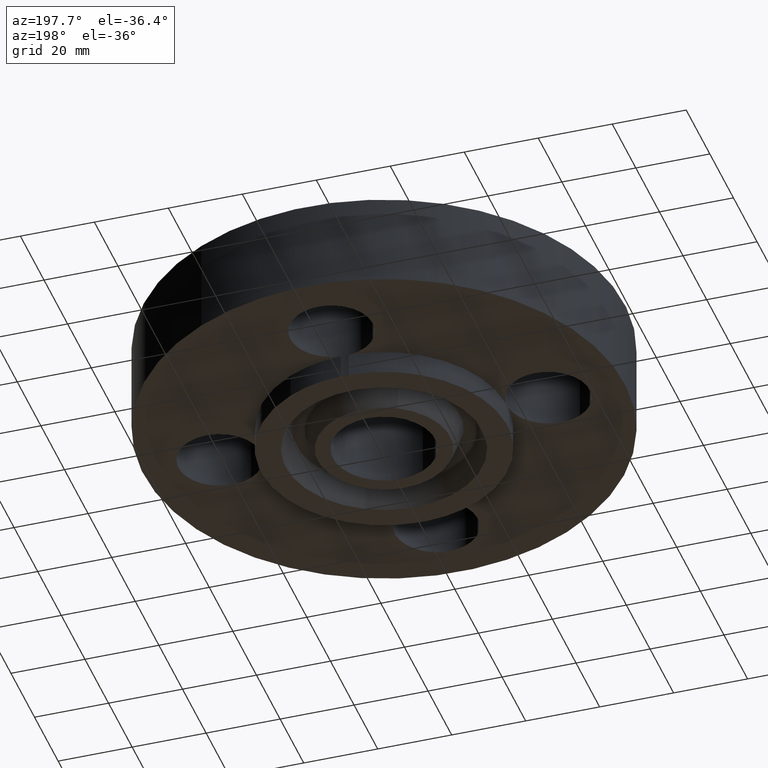
[diagram: clean part render]
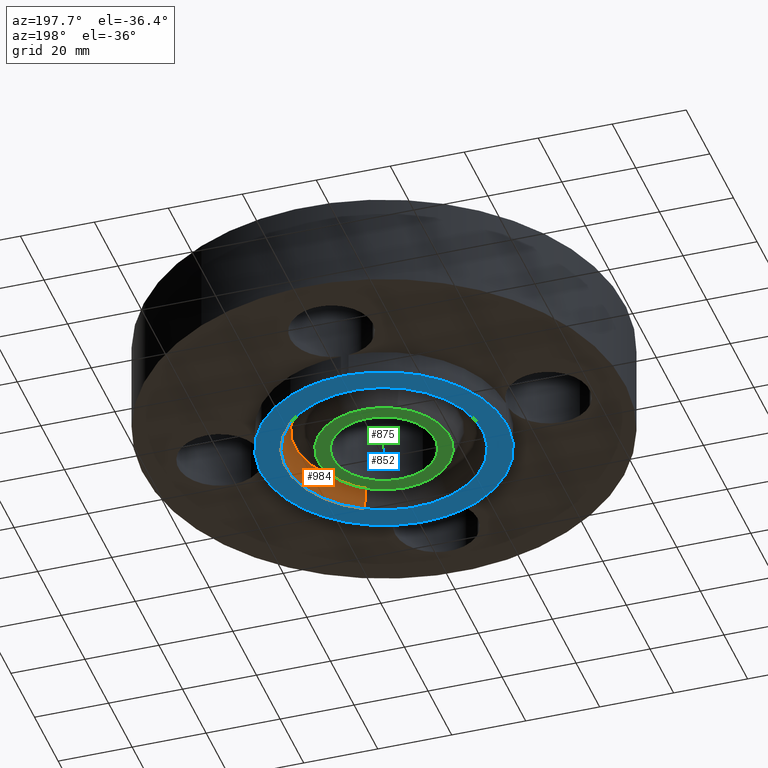
[diagram: same view with three faces highlighted in distinct colors, each labeled with its STEP entity id]
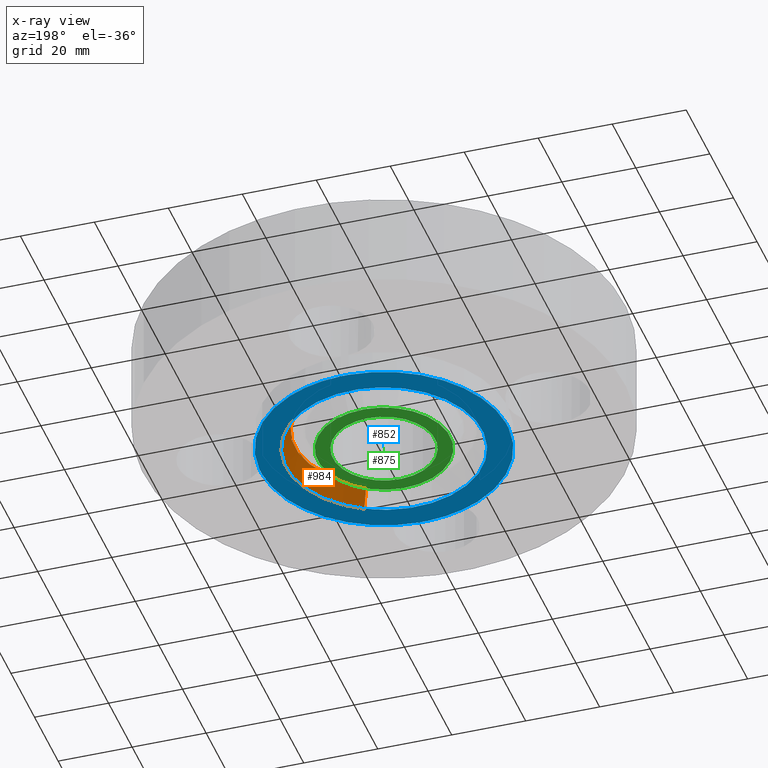
[diagram: x-ray of the same camera — body ghosted, the three highlighted faces saturated]
A machine part, auxiliary view with three faces highlighted in distinct colors.
The next image is the same camera in x-ray (body ghosted, the three faces saturated) — at least one of them is partly hidden behind the body in this view.
Their STEP definitions:

[orange] entity #984 — the highlighted conical surface has half-angle 23 deg.
#845=AXIS2_PLACEMENT_3D('Circle Axis2P3D',#843,#844,$) ;
#919=AXIS2_PLACEMENT_3D('Cone Axis2P3D',#916,#917,#918) ;
#940=AXIS2_PLACEMENT_3D('Circle Axis2P3D',#938,#939,$) ;
#838=CARTESIAN_POINT('Vertex',(0.501958538921,-0.918828942303,-0.250000000001)) ;
#840=CARTESIAN_POINT('Vertex',(-0.501958538921,0.918828942303,-0.250000000001)) ;
#843=CARTESIAN_POINT('Axis2P3D Location',(0.,6.99353086378E-017,-0.250000000001)) ;
#885=CARTESIAN_POINT('Vertex',(-0.454926171572,0.832736771348,-0.0188873350169)) ;
#887=CARTESIAN_POINT('Vertex',(0.454926171572,-0.832736771348,-0.0188873350169)) ;
#916=CARTESIAN_POINT('Axis2P3D Location',(0.,0.,-0.0188873350169)) ;
#921=CARTESIAN_POINT('Line Origine',(-0.478442355246,0.875782856826,-0.134443667509)) ;
#926=CARTESIAN_POINT('Line Origine',(0.478442355246,-0.875782856826,-0.134443667509)) ;
#938=CARTESIAN_POINT('Axis2P3D Location',(0.,0.,-0.0188873350169)) ;
#844=DIRECTION('Axis2P3D Direction',(0.,0.,-0.0393700787402)) ;
#917=DIRECTION('Axis2P3D Direction',(-0.,-0.,-0.0393700787402)) ;
#918=DIRECTION('Axis2P3D XDirection',(-0.0188750212049,0.0345504945626,0.)) ;
#922=DIRECTION('Vector Direction',(-0.00737505833565,0.0134999537303,-0.0362403485611)) ;
#927=DIRECTION('Vector Direction',(0.00737505833565,-0.0134999537303,-0.0362403485611)) ;
#939=DIRECTION('Axis2P3D Direction',(0.,0.,0.0393700787402)) ;
#923=VECTOR('Line Direction',#922,0.0393700787402) ;
#928=VECTOR('Line Direction',#927,0.0393700787402) ;
#979=ORIENTED_EDGE('',*,*,#847,.T.) ;
#980=ORIENTED_EDGE('',*,*,#930,.T.) ;
#981=ORIENTED_EDGE('',*,*,#942,.T.) ;
#982=ORIENTED_EDGE('',*,*,#925,.F.) ;
#984=ADVANCED_FACE('PartBody',(#983),#920,.F.) ;
#846=CIRCLE('generated circle',#845,1.047) ;
#941=CIRCLE('generated circle',#940,0.948898494011) ;
#920=CONICAL_SURFACE('Cone',#919,0.948898494011,0.401425727959) ;
#847=EDGE_CURVE('',#841,#839,#846,.T.) ;
#925=EDGE_CURVE('',#841,#886,#924,.F.) ;
#930=EDGE_CURVE('',#839,#888,#929,.F.) ;
#942=EDGE_CURVE('',#888,#886,#941,.T.) ;
#978=EDGE_LOOP('',(#979,#980,#981,#982)) ;
#983=FACE_OUTER_BOUND('',#978,.T.) ;
#924=LINE('Line',#921,#923) ;
#929=LINE('Line',#926,#928) ;
#839=VERTEX_POINT('',#838) ;
#841=VERTEX_POINT('',#840) ;
#886=VERTEX_POINT('',#885) ;
#888=VERTEX_POINT('',#887) ;

[blue] entity #852 — the highlighted planar face has unit normal (0, 0, -1).
#91=AXIS2_PLACEMENT_3D('Circle Axis2P3D',#89,#90,$) ;
#145=AXIS2_PLACEMENT_3D('Circle Axis2P3D',#143,#144,$) ;
#428=AXIS2_PLACEMENT_3D('Circle Axis2P3D',#426,#427,$) ;
#470=AXIS2_PLACEMENT_3D('Circle Axis2P3D',#468,#469,$) ;
#489=AXIS2_PLACEMENT_3D('Circle Axis2P3D',#487,#488,$) ;
#531=AXIS2_PLACEMENT_3D('Circle Axis2P3D',#529,#530,$) ;
#550=AXIS2_PLACEMENT_3D('Circle Axis2P3D',#548,#549,$) ;
#694=AXIS2_PLACEMENT_3D('Circle Axis2P3D',#692,#693,$) ;
#746=AXIS2_PLACEMENT_3D('Circle Axis2P3D',#744,#745,$) ;
#798=AXIS2_PLACEMENT_3D('Circle Axis2P3D',#796,#797,$) ;
#820=AXIS2_PLACEMENT_3D('Plane Axis2P3D',#817,#818,#819) ;
#836=AXIS2_PLACEMENT_3D('Circle Axis2P3D',#834,#835,$) ;
#845=AXIS2_PLACEMENT_3D('Circle Axis2P3D',#843,#844,$) ;
#86=CARTESIAN_POINT('Vertex',(0.0405576089,1.31187321429,-0.250000000001)) ;
#89=CARTESIAN_POINT('Axis2P3D Location',(0.,1.75000000001,-0.250000000001)) ;
#93=CARTESIAN_POINT('Vertex',(-0.0405576089,1.31187321429,-0.250000000001)) ;
#140=CARTESIAN_POINT('Vertex',(0.629246019421,1.15182711249,-0.250000000001)) ;
#143=CARTESIAN_POINT('Axis2P3D Location',(0.,0.,-0.250000000001)) ;
#426=CARTESIAN_POINT('Axis2P3D Location',(0.,0.,-0.250000000001)) ;
#430=CARTESIAN_POINT('Vertex',(-0.629246019421,-1.15182711249,-0.250000000001)) ;
#432=CARTESIAN_POINT('Vertex',(-1.31187321429,-0.0405576089,-0.250000000001)) ;
#468=CARTESIAN_POINT('Axis2P3D Location',(0.,0.,-0.250000000001)) ;
#472=CARTESIAN_POINT('Vertex',(-1.31187321429,0.0405576089,-0.250000000001)) ;
#487=CARTESIAN_POINT('Axis2P3D Location',(0.,0.,-0.250000000001)) ;
#491=CARTESIAN_POINT('Vertex',(1.31187321429,-0.0405576089,-0.250000000001)) ;
#493=CARTESIAN_POINT('Vertex',(0.0405576089,-1.31187321429,-0.250000000001)) ;
#529=CARTESIAN_POINT('Axis2P3D Location',(0.,0.,-0.250000000001)) ;
#533=CARTESIAN_POINT('Vertex',(-0.0405576089,-1.31187321429,-0.250000000001)) ;
#548=CARTESIAN_POINT('Axis2P3D Location',(0.,0.,-0.250000000001)) ;
#552=CARTESIAN_POINT('Vertex',(1.31187321429,0.0405576089,-0.250000000001)) ;
#692=CARTESIAN_POINT('Axis2P3D Location',(1.75000000001,-1.72584639625E-016,-0.250000000001)) ;
#744=CARTESIAN_POINT('Axis2P3D Location',(2.14313189852E-016,-1.75000000001,-0.250000000001)) ;
#796=CARTESIAN_POINT('Axis2P3D Location',(-1.75000000001,-3.21469784777E-016,-0.250000000001)) ;
#817=CARTESIAN_POINT('Axis2P3D Location',(0.,0.545000000002,-0.250000000001)) ;
#834=CARTESIAN_POINT('Axis2P3D Location',(0.,-1.39870617276E-016,-0.250000000001)) ;
#838=CARTESIAN_POINT('Vertex',(0.501958538921,-0.918828942303,-0.250000000001)) ;
#840=CARTESIAN_POINT('Vertex',(-0.501958538921,0.918828942303,-0.250000000001)) ;
#843=CARTESIAN_POINT('Axis2P3D Location',(0.,6.99353086378E-017,-0.250000000001)) ;
#90=DIRECTION('Axis2P3D Direction',(0.,-0.,-0.0393700787402)) ;
#144=DIRECTION('Axis2P3D Direction',(0.,0.,-0.0393700787402)) ;
#427=DIRECTION('Axis2P3D Direction',(0.,0.,-0.0393700787402)) ;
#469=DIRECTION('Axis2P3D Direction',(0.,0.,-0.0393700787402)) ;
#488=DIRECTION('Axis2P3D Direction',(0.,0.,-0.0393700787402)) ;
#530=DIRECTION('Axis2P3D Direction',(0.,0.,-0.0393700787402)) ;
#549=DIRECTION('Axis2P3D Direction',(0.,0.,-0.0393700787402)) ;
#693=DIRECTION('Axis2P3D Direction',(0.,-0.,-0.0393700787402)) ;
#745=DIRECTION('Axis2P3D Direction',(-0.,0.,-0.0393700787402)) ;
#797=DIRECTION('Axis2P3D Direction',(0.,0.,-0.0393700787402)) ;
#818=DIRECTION('Axis2P3D Direction',(0.,0.,-0.0393700787402)) ;
#819=DIRECTION('Axis2P3D XDirection',(0.0393700787402,0.,0.)) ;
#835=DIRECTION('Axis2P3D Direction',(0.,0.,-0.0393700787402)) ;
#844=DIRECTION('Axis2P3D Direction',(0.,0.,-0.0393700787402)) ;
#823=ORIENTED_EDGE('',*,*,#495,.T.) ;
#824=ORIENTED_EDGE('',*,*,#748,.F.) ;
#825=ORIENTED_EDGE('',*,*,#535,.T.) ;
#826=ORIENTED_EDGE('',*,*,#434,.T.) ;
#827=ORIENTED_EDGE('',*,*,#800,.F.) ;
#828=ORIENTED_EDGE('',*,*,#474,.T.) ;
#829=ORIENTED_EDGE('',*,*,#95,.F.) ;
#830=ORIENTED_EDGE('',*,*,#147,.T.) ;
#831=ORIENTED_EDGE('',*,*,#554,.T.) ;
#832=ORIENTED_EDGE('',*,*,#696,.F.) ;
#849=ORIENTED_EDGE('',*,*,#842,.F.) ;
#850=ORIENTED_EDGE('',*,*,#847,.F.) ;
#851=FACE_BOUND('',#848,.T.) ;
#852=ADVANCED_FACE('PartBody',(#833,#851),#821,.T.) ;
#92=CIRCLE('generated circle',#91,0.440000000002) ;
#146=CIRCLE('generated circle',#145,1.31250000001) ;
#429=CIRCLE('generated circle',#428,1.31250000001) ;
#471=CIRCLE('generated circle',#470,1.31250000001) ;
#490=CIRCLE('generated circle',#489,1.31250000001) ;
#532=CIRCLE('generated circle',#531,1.31250000001) ;
#551=CIRCLE('generated circle',#550,1.31250000001) ;
#695=CIRCLE('generated circle',#694,0.440000000002) ;
#747=CIRCLE('generated circle',#746,0.440000000002) ;
#799=CIRCLE('generated circle',#798,0.440000000002) ;
#837=CIRCLE('generated circle',#836,1.047) ;
#846=CIRCLE('generated circle',#845,1.047) ;
#95=EDGE_CURVE('',#87,#94,#92,.T.) ;
#147=EDGE_CURVE('',#87,#141,#146,.T.) ;
#434=EDGE_CURVE('',#431,#433,#429,.T.) ;
#474=EDGE_CURVE('',#473,#94,#471,.T.) ;
#495=EDGE_CURVE('',#492,#494,#490,.T.) ;
#535=EDGE_CURVE('',#534,#431,#532,.T.) ;
#554=EDGE_CURVE('',#141,#553,#551,.T.) ;
#696=EDGE_CURVE('',#492,#553,#695,.T.) ;
#748=EDGE_CURVE('',#534,#494,#747,.T.) ;
#800=EDGE_CURVE('',#473,#433,#799,.T.) ;
#842=EDGE_CURVE('',#839,#841,#837,.T.) ;
#847=EDGE_CURVE('',#841,#839,#846,.T.) ;
#822=EDGE_LOOP('',(#823,#824,#825,#826,#827,#828,#829,#830,#831,#832)) ;
#848=EDGE_LOOP('',(#849,#850)) ;
#833=FACE_OUTER_BOUND('',#822,.T.) ;
#821=PLANE('',#820) ;
#87=VERTEX_POINT('',#86) ;
#94=VERTEX_POINT('',#93) ;
#141=VERTEX_POINT('',#140) ;
#431=VERTEX_POINT('',#430) ;
#433=VERTEX_POINT('',#432) ;
#473=VERTEX_POINT('',#472) ;
#492=VERTEX_POINT('',#491) ;
#494=VERTEX_POINT('',#493) ;
#534=VERTEX_POINT('',#533) ;
#553=VERTEX_POINT('',#552) ;
#839=VERTEX_POINT('',#838) ;
#841=VERTEX_POINT('',#840) ;

[green] entity #875 — the highlighted planar face has unit normal (0, 0, -1).
#397=AXIS2_PLACEMENT_3D('Circle Axis2P3D',#395,#396,$) ;
#416=AXIS2_PLACEMENT_3D('Circle Axis2P3D',#414,#415,$) ;
#820=AXIS2_PLACEMENT_3D('Plane Axis2P3D',#817,#818,#819) ;
#855=AXIS2_PLACEMENT_3D('Circle Axis2P3D',#853,#854,$) ;
#864=AXIS2_PLACEMENT_3D('Circle Axis2P3D',#862,#863,$) ;
#392=CARTESIAN_POINT('Vertex',(-0.26128691854,-0.478282496232,-0.250000000001)) ;
#395=CARTESIAN_POINT('Axis2P3D Location',(0.,0.,-0.250000000001)) ;
#399=CARTESIAN_POINT('Vertex',(0.26128691854,0.478282496232,-0.250000000001)) ;
#414=CARTESIAN_POINT('Axis2P3D Location',(0.,0.,-0.250000000001)) ;
#817=CARTESIAN_POINT('Axis2P3D Location',(0.,0.545000000002,-0.250000000001)) ;
#853=CARTESIAN_POINT('Axis2P3D Location',(-1.39870617276E-016,-6.99353086378E-017,-0.250000000001)) ;
#857=CARTESIAN_POINT('Vertex',(-0.33703615364,0.616940541011,-0.250000000001)) ;
#859=CARTESIAN_POINT('Vertex',(0.33703615364,-0.616940541011,-0.250000000001)) ;
#862=CARTESIAN_POINT('Axis2P3D Location',(6.99353086378E-017,0.,-0.250000000001)) ;
#396=DIRECTION('Axis2P3D Direction',(0.,0.,-0.0393700787402)) ;
#415=DIRECTION('Axis2P3D Direction',(0.,0.,-0.0393700787402)) ;
#818=DIRECTION('Axis2P3D Direction',(0.,0.,-0.0393700787402)) ;
#819=DIRECTION('Axis2P3D XDirection',(0.0393700787402,0.,0.)) ;
#854=DIRECTION('Axis2P3D Direction',(0.,0.,-0.0393700787402)) ;
#863=DIRECTION('Axis2P3D Direction',(0.,0.,-0.0393700787402)) ;
#868=ORIENTED_EDGE('',*,*,#861,.T.) ;
#869=ORIENTED_EDGE('',*,*,#866,.T.) ;
#872=ORIENTED_EDGE('',*,*,#418,.F.) ;
#873=ORIENTED_EDGE('',*,*,#401,.F.) ;
#874=FACE_BOUND('',#871,.T.) ;
#875=ADVANCED_FACE('PartBody',(#870,#874),#821,.T.) ;
#398=CIRCLE('generated circle',#397,0.545000000002) ;
#417=CIRCLE('generated circle',#416,0.545000000002) ;
#856=CIRCLE('generated circle',#855,0.703000000003) ;
#865=CIRCLE('generated circle',#864,0.703000000003) ;
#401=EDGE_CURVE('',#393,#400,#398,.T.) ;
#418=EDGE_CURVE('',#400,#393,#417,.T.) ;
#861=EDGE_CURVE('',#858,#860,#856,.T.) ;
#866=EDGE_CURVE('',#860,#858,#865,.T.) ;
#867=EDGE_LOOP('',(#868,#869)) ;
#871=EDGE_LOOP('',(#872,#873)) ;
#870=FACE_OUTER_BOUND('',#867,.T.) ;
#821=PLANE('',#820) ;
#393=VERTEX_POINT('',#392) ;
#400=VERTEX_POINT('',#399) ;
#858=VERTEX_POINT('',#857) ;
#860=VERTEX_POINT('',#859) ;